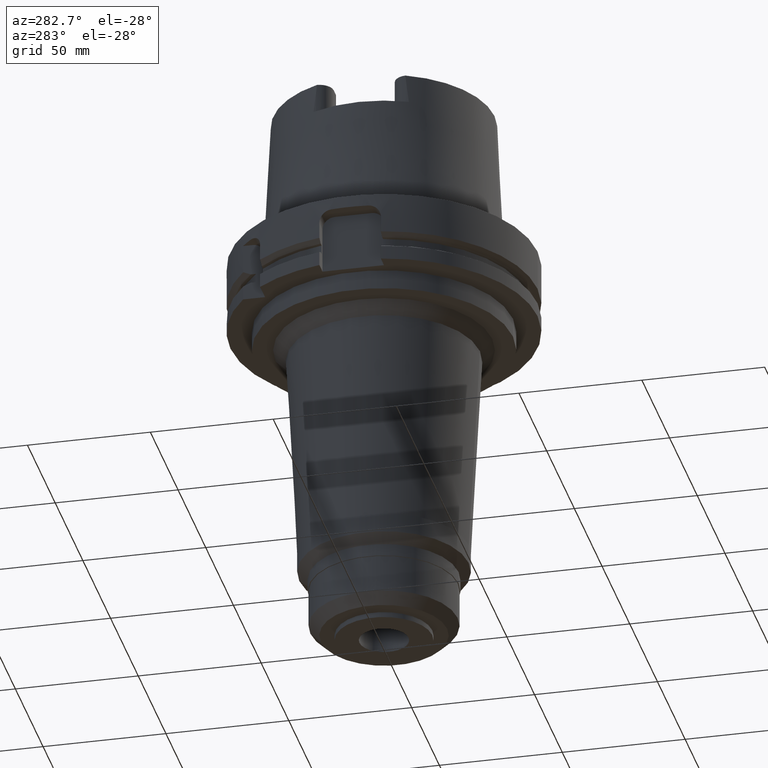
[diagram: clean part render]
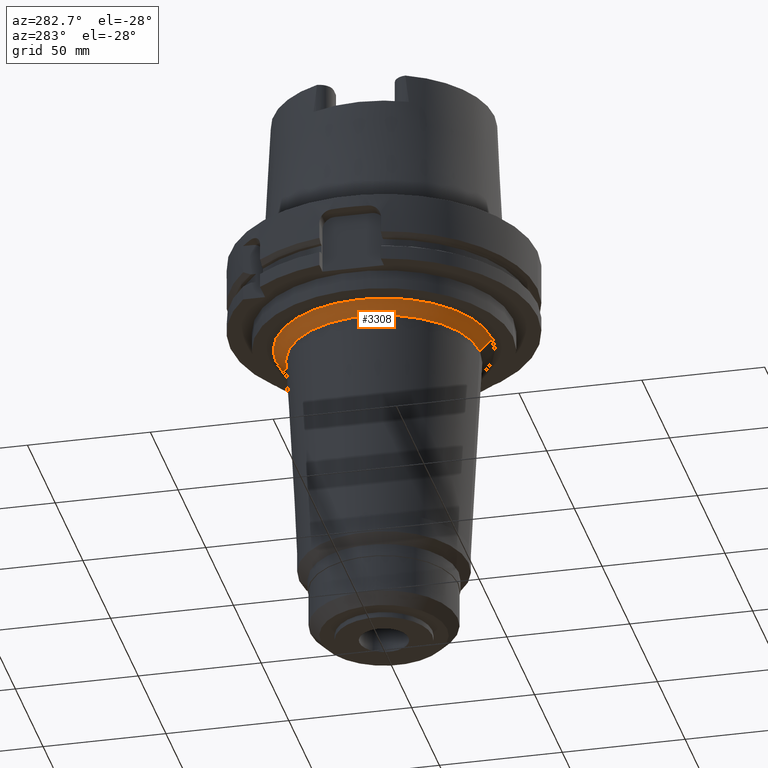
[diagram: same view with one face highlighted and labeled with its STEP entity id]
A machine part, auxiliary view. The second image highlights one B-rep face of the part: STEP entity #3308.
In plain terms, the highlighted conical surface has half-angle 45 deg.
Its self-contained STEP definition (entity closure, byte-faithful):
#1001=DIRECTION('',(0.E0,-7.071067811866E-1,-7.071067811865E-1));
#1002=VECTOR('',#1001,7.071067811865E0);
#1003=CARTESIAN_POINT('',(0.E0,4.404375446384E1,-3.7E1));
#1004=LINE('',#1003,#1002);
#1008=DIRECTION('',(0.E0,7.071067811866E-1,-7.071067811865E-1));
#1009=VECTOR('',#1008,7.071067811865E0);
#1010=CARTESIAN_POINT('',(0.E0,-4.404375446384E1,-3.7E1));
#1011=LINE('',#1010,#1009);
#1015=CARTESIAN_POINT('',(0.E0,0.E0,-4.2E1));
#1016=DIRECTION('',(0.E0,0.E0,-1.E0));
#1017=DIRECTION('',(0.E0,-1.E0,0.E0));
#1018=AXIS2_PLACEMENT_3D('',#1015,#1016,#1017);
#1039=CARTESIAN_POINT('',(0.E0,0.E0,-3.7E1));
#1040=DIRECTION('',(0.E0,0.E0,-1.E0));
#1041=DIRECTION('',(0.E0,-1.E0,0.E0));
#1042=AXIS2_PLACEMENT_3D('',#1039,#1040,#1041);
#2277=CARTESIAN_POINT('',(0.E0,3.904375446384E1,-4.2E1));
#2278=VERTEX_POINT('',#2277);
#2279=CARTESIAN_POINT('',(0.E0,-3.904375446384E1,-4.2E1));
#2280=VERTEX_POINT('',#2279);
#2281=CARTESIAN_POINT('',(0.E0,4.404375446384E1,-3.7E1));
#2282=VERTEX_POINT('',#2281);
#2283=CARTESIAN_POINT('',(0.E0,-4.404375446384E1,-3.7E1));
#2284=VERTEX_POINT('',#2283);
#3296=CARTESIAN_POINT('',(0.E0,0.E0,-3.95E1));
#3297=DIRECTION('',(0.E0,0.E0,1.E0));
#3298=DIRECTION('',(0.E0,1.E0,0.E0));
#3299=AXIS2_PLACEMENT_3D('',#3296,#3297,#3298);
#3300=CONICAL_SURFACE('',#3299,4.154375446384E1,4.5E1);
#3301=ORIENTED_EDGE('',*,*,#3286,.F.);
#3303=ORIENTED_EDGE('',*,*,#3302,.F.);
#3304=ORIENTED_EDGE('',*,*,#3289,.T.);
#3305=ORIENTED_EDGE('',*,*,#3260,.T.);
#3306=EDGE_LOOP('',(#3301,#3303,#3304,#3305));
#3307=FACE_OUTER_BOUND('',#3306,.F.);
#1019=CIRCLE('',#1018,3.904375446384E1);
#1043=CIRCLE('',#1042,4.404375446384E1);
#3260=EDGE_CURVE('',#2280,#2278,#1019,.T.);
#3286=EDGE_CURVE('',#2282,#2278,#1004,.T.);
#3289=EDGE_CURVE('',#2284,#2280,#1011,.T.);
#3302=EDGE_CURVE('',#2284,#2282,#1043,.T.);
#3308=ADVANCED_FACE('',(#3307),#3300,.T.);